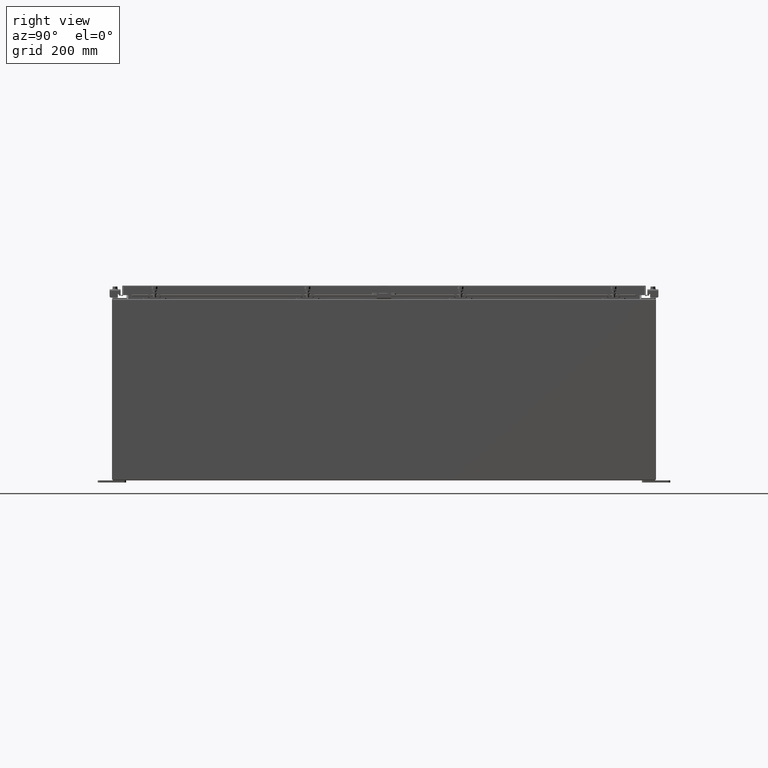
[diagram: clean part render]
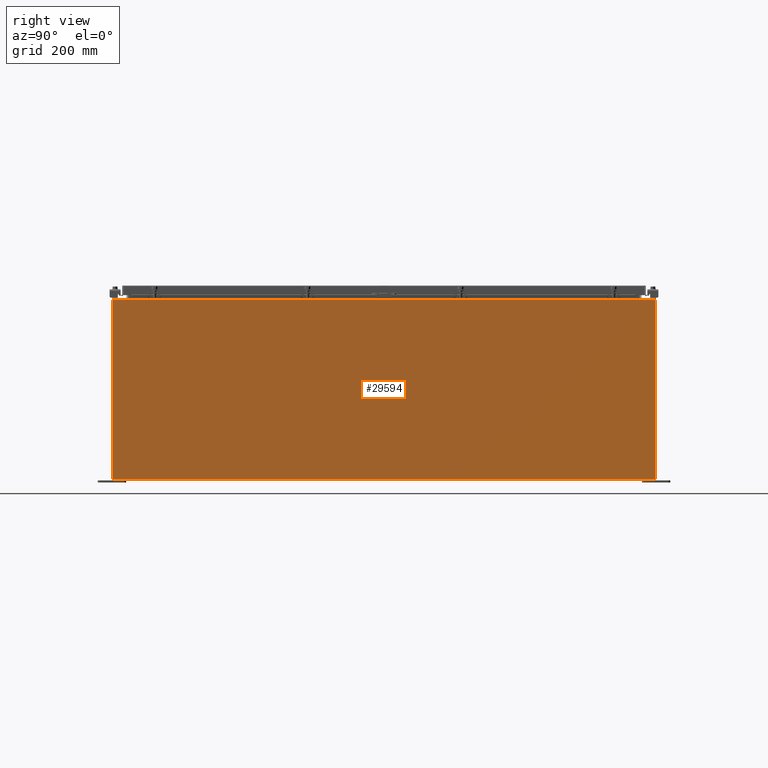
[diagram: same view with one face highlighted and labeled with its STEP entity id]
A machine part, right view. The second image highlights one B-rep face of the part: STEP entity #29594.
In plain terms, the highlighted planar face has unit normal (-1, 0, 0).
Its self-contained STEP definition (entity closure, byte-faithful):
#969 = VERTEX_POINT ( 'NONE', #28053 ) ;
#2024 = CARTESIAN_POINT ( 'NONE',  ( 18.00000000000005000, 23.92529999999998600, 15.83760000000001400 ) ) ;
#2164 = ORIENTED_EDGE ( 'NONE', *, *, #12188, .F. ) ;
#3322 = FACE_OUTER_BOUND ( 'NONE', #33295, .T. ) ;
#3903 = VECTOR ( 'NONE', #44617, 39.37007874015748100 ) ;
#4632 = EDGE_CURVE ( 'NONE', #45035, #969, #36707, .T. ) ;
#7103 = AXIS2_PLACEMENT_3D ( 'NONE', #24383, #54220, #28674 ) ;
#7383 = ORIENTED_EDGE ( 'NONE', *, *, #4632, .T. ) ;
#7777 = DIRECTION ( 'NONE',  ( -0.0000000000000000000, -1.000000000000000000, -0.0000000000000000000 ) ) ;
#8491 = DIRECTION ( 'NONE',  ( 3.430827668758847500E-015, 0.0000000000000000000, 1.000000000000000000 ) ) ;
#12188 = EDGE_CURVE ( 'NONE', #28412, #969, #26912, .T. ) ;
#13899 = EDGE_CURVE ( 'NONE', #28412, #49835, #21821, .T. ) ;
#14345 = LINE ( 'NONE', #33446, #27079 ) ;
#15132 = ORIENTED_EDGE ( 'NONE', *, *, #21871, .T. ) ;
#15783 = PLANE ( 'NONE',  #7103 ) ;
#17492 = CARTESIAN_POINT ( 'NONE',  ( 17.99999999999999600, 23.92529999999998900, -6.201294945617877200E-014 ) ) ;
#17758 = ORIENTED_EDGE ( 'NONE', *, *, #13899, .T. ) ;
#21821 = LINE ( 'NONE', #17492, #54545 ) ;
#21871 = EDGE_CURVE ( 'NONE', #49835, #45035, #14345, .T. ) ;
#23740 = CARTESIAN_POINT ( 'NONE',  ( 17.99999999999999600, -23.92529999999998900, 0.01299999999999985200 ) ) ;
#24383 = CARTESIAN_POINT ( 'NONE',  ( 17.99999999999999600, 0.0000000000000000000, -6.201294945617877200E-014 ) ) ;
#25560 = VECTOR ( 'NONE', #36624, 39.37007874015748100 ) ;
#26912 = LINE ( 'NONE', #23740, #25560 ) ;
#27079 = VECTOR ( 'NONE', #7777, 39.37007874015748100 ) ;
#28053 = CARTESIAN_POINT ( 'NONE',  ( 17.99999999999999600, -23.92529999999998900, 0.01299999999999898100 ) ) ;
#28412 = VERTEX_POINT ( 'NONE', #44525 ) ;
#28674 = DIRECTION ( 'NONE',  ( 3.430827668758846700E-015, 0.0000000000000000000, 1.000000000000000000 ) ) ;
#29594 = ADVANCED_FACE ( 'NONE', ( #3322 ), #15783, .F. ) ;
#33295 = EDGE_LOOP ( 'NONE', ( #15132, #7383, #2164, #17758 ) ) ;
#33446 = CARTESIAN_POINT ( 'NONE',  ( 18.00000000000005000, 23.92529999999998900, 15.83760000000001400 ) ) ;
#36037 = CARTESIAN_POINT ( 'NONE',  ( 17.99999999999999600, -23.92529999999998900, -6.201294945617877200E-014 ) ) ;
#36133 = CARTESIAN_POINT ( 'NONE',  ( 18.00000000000005000, -23.92529999999998900, 15.83760000000000200 ) ) ;
#36624 = DIRECTION ( 'NONE',  ( -1.566960444969418600E-031, -1.000000000000000000, -4.567295697298285000E-017 ) ) ;
#36707 = LINE ( 'NONE', #36037, #3903 ) ;
#44525 = CARTESIAN_POINT ( 'NONE',  ( 17.99999999999999600, 23.92529999999998600, 0.01300000000000203600 ) ) ;
#44617 = DIRECTION ( 'NONE',  ( -3.430827668758847500E-015, 0.0000000000000000000, -1.000000000000000000 ) ) ;
#45035 = VERTEX_POINT ( 'NONE', #36133 ) ;
#49835 = VERTEX_POINT ( 'NONE', #2024 ) ;
#54220 = DIRECTION ( 'NONE',  ( -1.000000000000000000, 0.0000000000000000000, 3.430827668758846700E-015 ) ) ;
#54545 = VECTOR ( 'NONE', #8491, 39.37007874015748100 ) ;